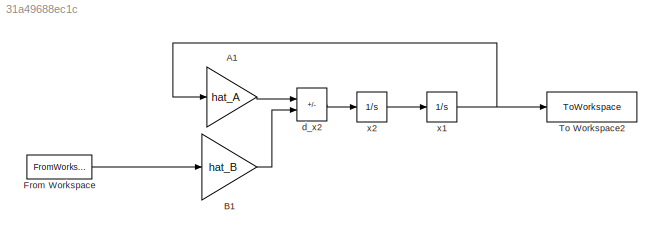
MODEL slx_31a49688ec1c
KIND model
CONFIG AbsTol = auto
CONFIG EnableMultiTasking = off
CONFIG FixedStep = 0.01
CONFIG MaxStep = auto
CONFIG MinStep = auto
CONFIG RelTol = 1e-3
CONFIG SampleTimeConstraint = Unconstrained
CONFIG SolverName = ode4
CONFIG StartTime = 0.0
CONFIG StopTime = 20
BLOCK [Gain] A1
  Gain = hat_A
  Multiplication = Matrix(K*u) (u vector)
BLOCK [Gain] B1
  Gain = hat_B
  Multiplication = Matrix(K*u) (u vector)
BLOCK [FromWorkspace] From Workspace
  VariableName = u
BLOCK [ToWorkspace] To Workspace2
  FixptAsFi = on
  MaxDataPoints = inf
  SampleTime = -1
  Save2DSignal = 2-D array (concatenate along first dimension)
  VariableName = hat_x1
BLOCK [Sum] d_x2
  IconShape = rectangular
  Inputs = -+
BLOCK [Integrator] x1
BLOCK [Integrator] x2
LINE A1:1 -> d_x2:1
LINE B1:1 -> d_x2:2
LINE From Workspace:1 -> B1:1
LINE d_x2:1 -> x2:1
NET x1:1 -> A1:1, To Workspace2:1
LINE x2:1 -> x1:1
note: NET lines group one-source signal fan-out (src -> all destinations, sorted); 1:1 wires keep LINE
